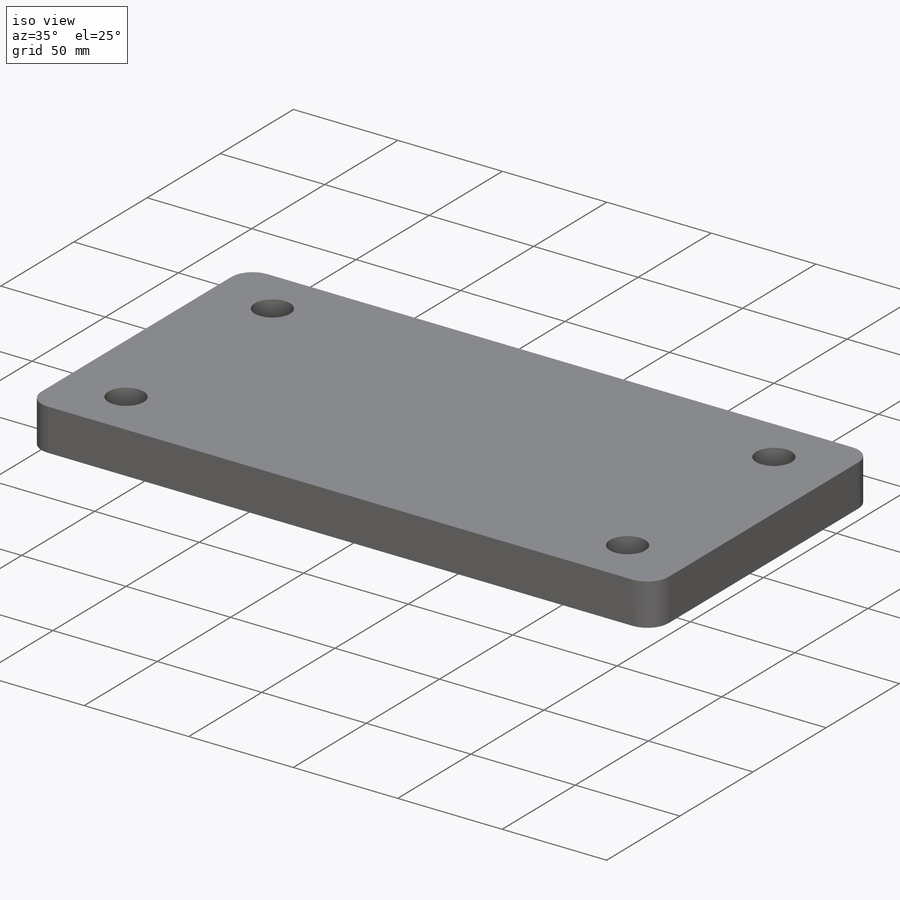
[diagram: iso view]
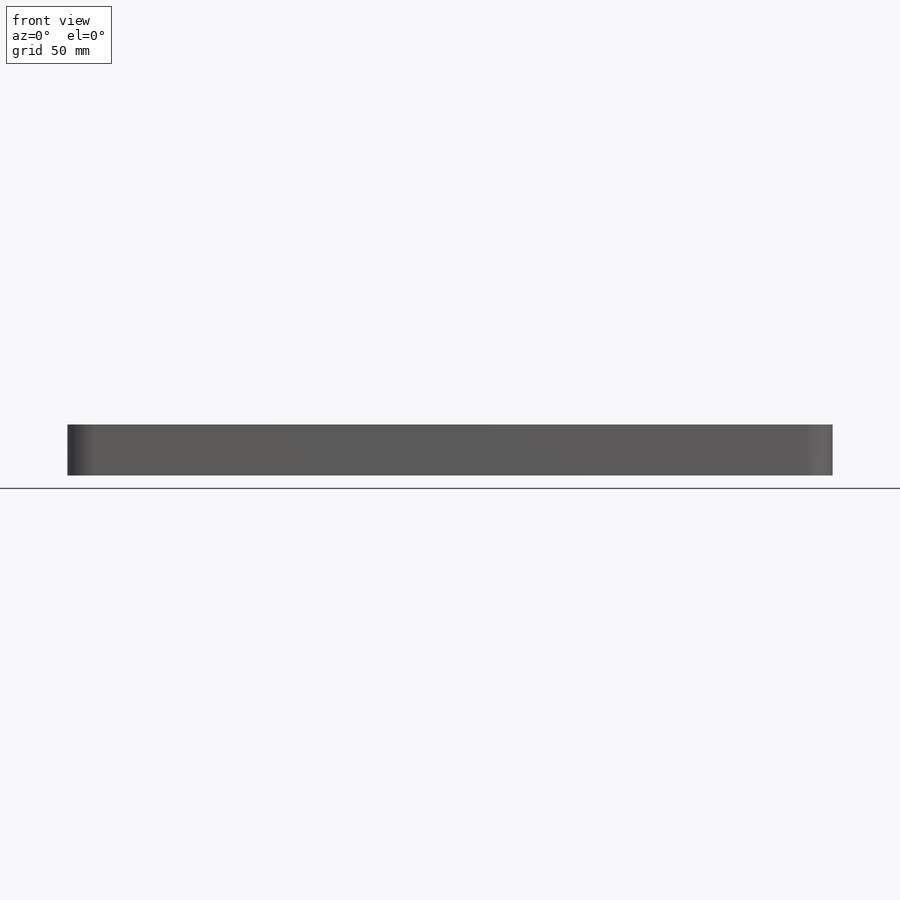
[diagram: front view]
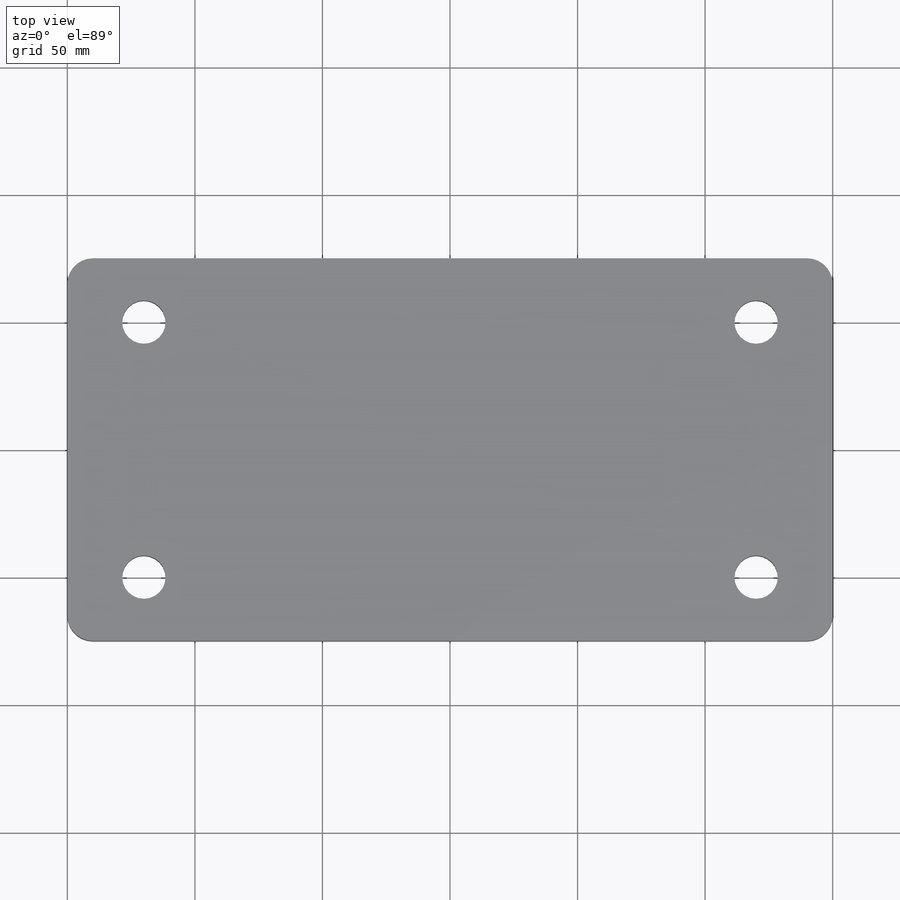
[diagram: top view]
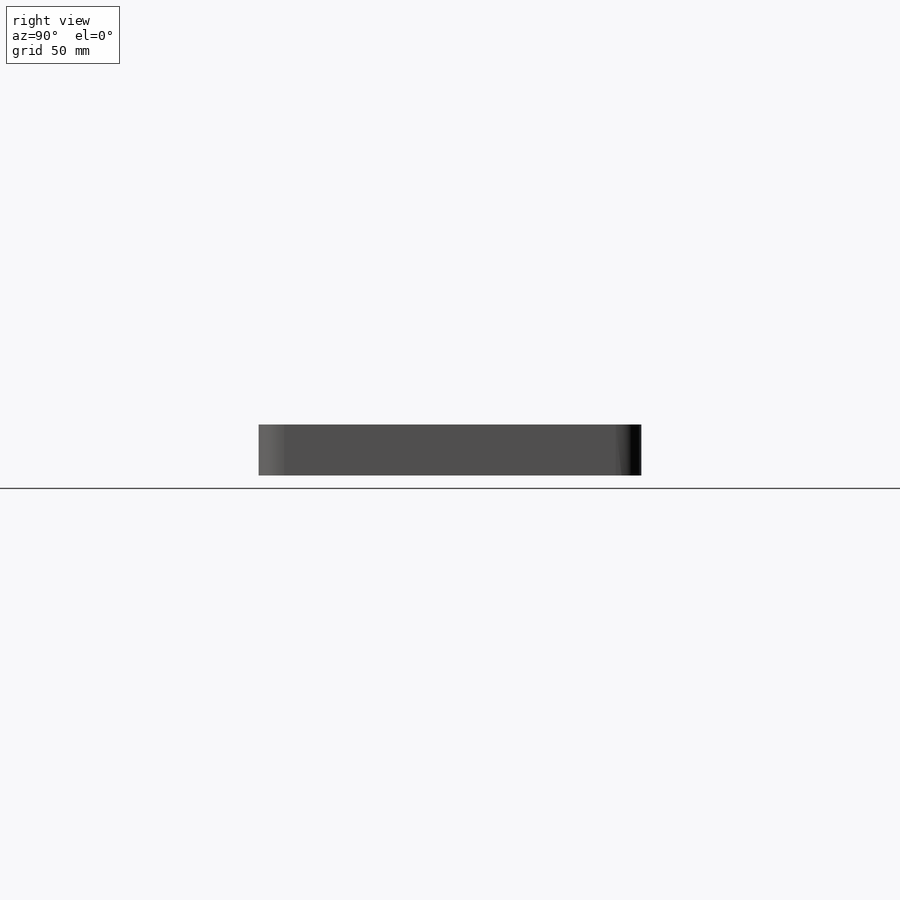
[diagram: right view]
SOLIDWORKS PART (.sldprt)
format: sldprt  version: not decoded by parser v0  size: 385,536 bytes
history: native  units: mm
features: sketch x6, thread x4, plane x3, hole x2, material x1, extrude x1 (+10 scaffold rows collapsed)
feature tree (27):
  scaffold x10  (default folders/planes/origin — collapsed)
  material  "Material <not specified>"
  plane  "Alzado"
  plane  "Planta"
  plane  "Vista lateral"
  sketch  "Croquis1"  dims[D3=10.0mm D1=300.0mm D2=150.0mm]
  extrude  "Saliente-Extruir2"  Depth=20mm
  sketch  "Croquis3"  dims[D1=240.0mm D2=100.0mm]
  hole  "Diámetro de taladro Ø17.0 (17)1"  Depth=20mm  [1 undecoded]
  sketch  "Croquis3D1"
  sketch  "Croquis4"  dims[hole-wizard template sketch: 59 standard entries collapsed; hole parameters kept: c18.Diámetro de taladro hasta el siguiente=17.0mm c18.Profundidad de taladro hasta el siguiente=20.0mm]
  hole  "Taladro roscado M161"  Depth=20mm  [1 undecoded]
  sketch  "Croquis3D2"
  sketch  "Croquis5"  dims[hole-wizard template sketch: 59 standard entries collapsed; hole parameters kept: c18.Diámetro de perforador para roscar hasta el siguiente=14.0mm c18.Profundidad de perforador para roscar hasta el siguiente=20.0mm]
  thread  "Rosca de taladro1"  Diameter=16mm  [1 undecoded]
  thread  "Rosca de taladro2"  Diameter=16mm  [1 undecoded]
  thread  "Rosca de taladro3"  Diameter=16mm  [1 undecoded]
  thread  "Rosca de taladro4"  Diameter=16mm  [1 undecoded]
decode coverage: 11 of 13 modeling features carry decoded parameters
note: ~ marks probable driven/reference dimensions
note: 6 parameter values undecoded
note: suppression state not decoded; provenance and decode notes live in map.json
